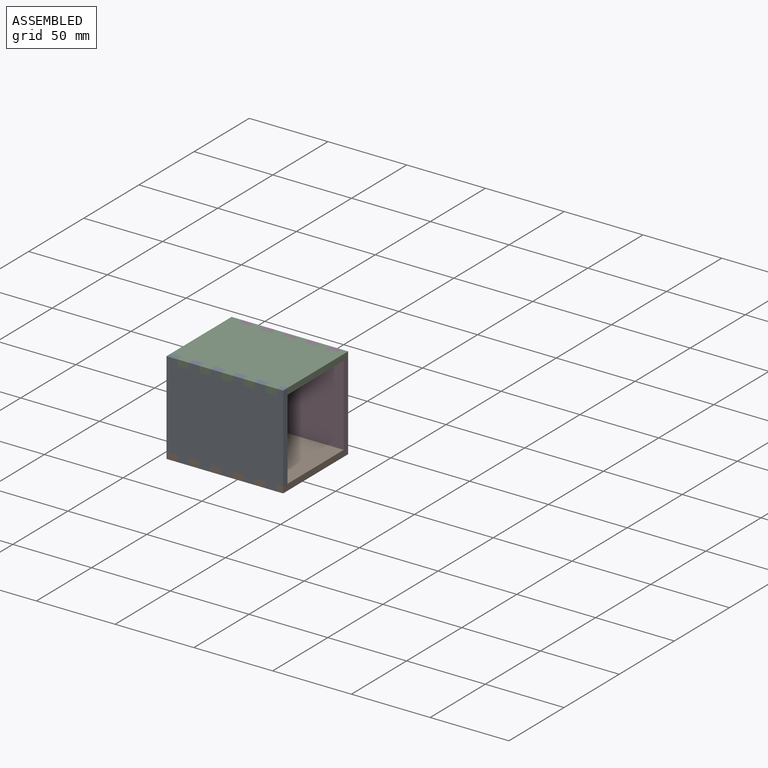
[diagram: assembled view]
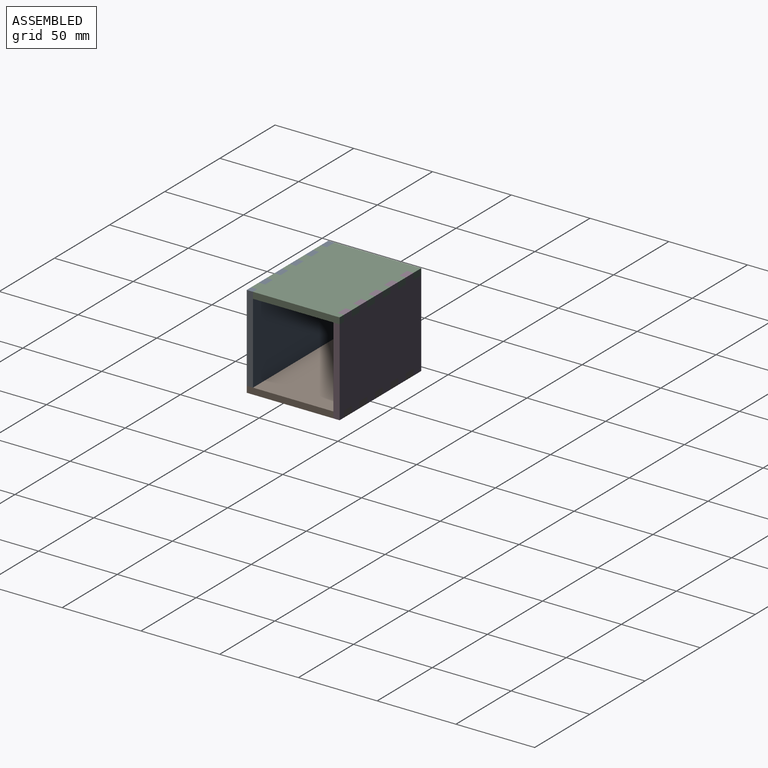
[diagram: assembled view, second angle]
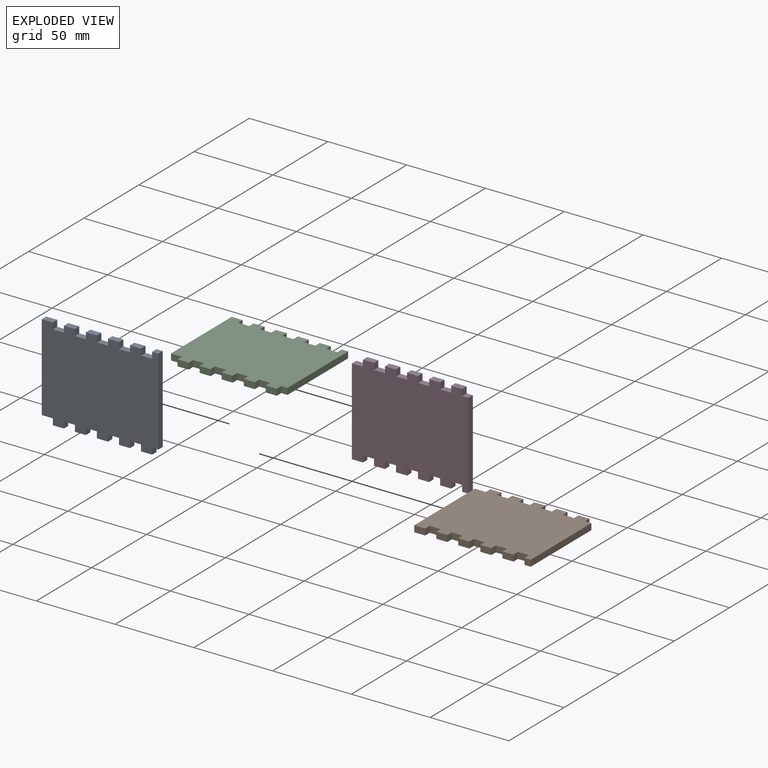
[diagram: exploded view]
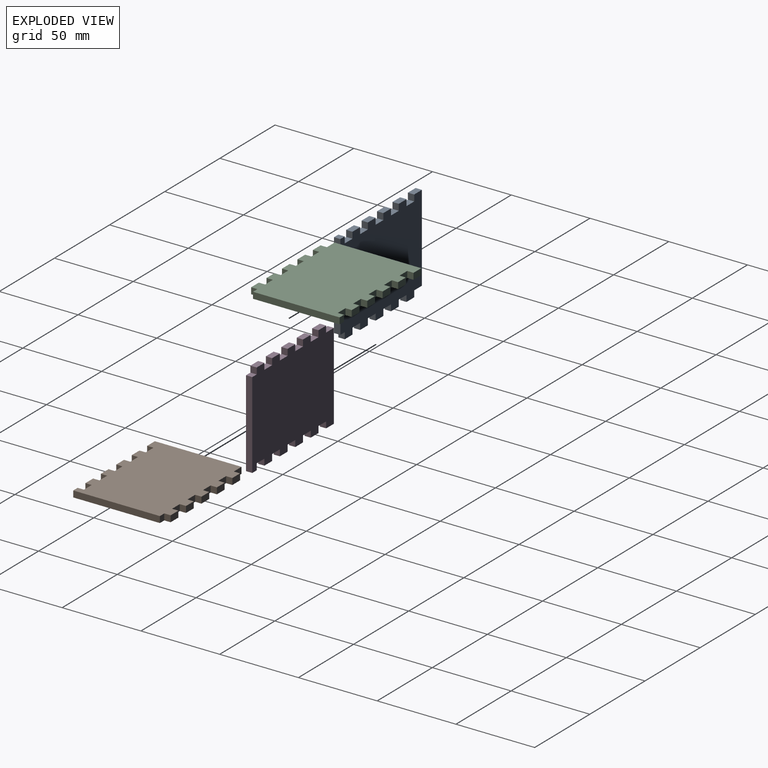
[diagram: exploded view, second angle]
ASSEMBLY  parts=4 mates=3
PART A: 46 faces, bbox 74x59x4 mm
  f0: plane 7x4mm, normal (0,-1,0), area 28mm2, adj f1,f43,f44,f45
  f1: plane 4x4mm, normal (-1,0,0), area 16mm2, adj f0,f2,f44,f45
  f2: plane 7x4mm, normal (0,-1,0), area 28mm2, adj f1,f3,f44,f45
  f3: plane 4x4mm, normal (1,0,0), area 16mm2, adj f2,f4,f44,f45
  f4: plane 7x4mm, normal (0,-1,0), area 28mm2, adj f3,f5,f44,f45
  f5: plane 4x4mm, normal (-1,0,0), area 16mm2, adj f4,f6,f44,f45
  f6: plane 7x4mm, normal (0,-1,0), area 28mm2, adj f5,f7,f44,f45
  f7: plane 4x4mm, normal (1,0,0), area 16mm2, adj f6,f8,f44,f45
  f8: plane 7x4mm, normal (0,-1,0), area 28mm2, adj f7,f9,f44,f45
  f9: plane 4x4mm, normal (-1,0,0), area 16mm2, adj f8,f10,f44,f45
  f10: plane 7x4mm, normal (0,-1,0), area 28mm2, adj f9,f11,f44,f45
  f11: plane 4x4mm, normal (1,0,0), area 16mm2, adj f10,f12,f44,f45
  f12: plane 7x4mm, normal (0,-1,0), area 28mm2, adj f11,f13,f44,f45
  f13: plane 4x4mm, normal (-1,0,0), area 16mm2, adj f12,f14,f44,f45
  f14: plane 7x4mm, normal (0,-1,0), area 28mm2, adj f13,f15,f44,f45
  f15: plane 4x4mm, normal (1,0,0), area 16mm2, adj f14,f16,f44,f45
  f16: plane 7x4mm, normal (0,-1,0), area 28mm2, adj f15,f17,f44,f45
  f17: plane 4x4mm, normal (-1,0,0), area 16mm2, adj f16,f18,f44,f45
  f18: plane 7x4mm, normal (0,-1,0), area 28mm2, adj f17,f19,f44,f45
  f19: plane 4x4mm, normal (1,0,0), area 16mm2, adj f18,f20,f44,f45
  f20: plane 4x4mm, normal (0,-1,0), area 16mm2, adj f19,f21,f44,f45
  f21: plane 55x4mm, normal (1,0,0), area 220mm2, adj f20,f22,f44,f45
  f22: plane 4x4mm, normal (0,1,0), area 16mm2, adj f21,f23,f44,f45
  f23: plane 4x4mm, normal (-1,0,0), area 16mm2, adj f22,f24,f44,f45
  f24: plane 7x4mm, normal (0,1,0), area 28mm2, adj f23,f25,f44,f45
  f25: plane 4x4mm, normal (1,0,0), area 16mm2, adj f24,f26,f44,f45
  f26: plane 7x4mm, normal (0,1,0), area 28mm2, adj f25,f27,f44,f45
  f27: plane 4x4mm, normal (-1,0,0), area 16mm2, adj f26,f28,f44,f45
  f28: plane 7x4mm, normal (0,1,0), area 28mm2, adj f27,f29,f44,f45
  f29: plane 4x4mm, normal (1,0,0), area 16mm2, adj f28,f30,f44,f45
  f30: plane 7x4mm, normal (0,1,0), area 28mm2, adj f29,f31,f44,f45
  f31: plane 4x4mm, normal (-1,0,0), area 16mm2, adj f30,f32,f44,f45
  f32: plane 7x4mm, normal (0,1,0), area 28mm2, adj f31,f33,f44,f45
  f33: plane 4x4mm, normal (1,0,0), area 16mm2, adj f32,f34,f44,f45
  f34: plane 7x4mm, normal (0,1,0), area 28mm2, adj f33,f35,f44,f45
  f35: plane 4x4mm, normal (-1,0,0), area 16mm2, adj f34,f36,f44,f45
  f36: plane 7x4mm, normal (0,1,0), area 28mm2, adj f35,f37,f44,f45
  f37: plane 4x4mm, normal (1,0,0), area 16mm2, adj f36,f38,f44,f45
  f38: plane 7x4mm, normal (0,1,0), area 28mm2, adj f37,f39,f44,f45
  f39: plane 4x4mm, normal (-1,0,0), area 16mm2, adj f38,f40,f44,f45
  f40: plane 7x4mm, normal (0,1,0), area 28mm2, adj f39,f41,f44,f45
  f41: plane 4x4mm, normal (1,0,0), area 16mm2, adj f40,f42,f44,f45
  f42: plane 7x4mm, normal (0,1,0), area 28mm2, adj f41,f43,f44,f45
  f43: plane 55x4mm, normal (-1,0,0), area 220mm2, adj f0,f42,f44,f45
  f44: plane 74x59mm, normal (0,0,1), area 4070mm2, adj f0,f1,f2,f3,f4,f5,f6,f7
  f45: plane 74x59mm, normal (0,0,-1), area 4070mm2, adj f0,f1,f2,f3,f4,f5,f6,f7
PART B: same geometry as A
PART C: same geometry as A
PART D: same geometry as A
PLACE A rot(axis=(1,0,0),90deg) t=(-5.72,-66.98,60.3)mm
PLACE B rot(axis=(1,0,0),180deg) t=(-5.72,-41.48,34.8)mm
PLACE C t=(-5.72,-41.48,85.8)mm
PLACE D rot(axis=(-1,0,0),90deg) t=(-5.72,-15.98,60.3)mm
MATE fastened C.f19 <-> A.f23  axis (1,0,0) through (27.28,-68.98,87.8)mm
MATE fastened D.f19 <-> C.f23  axis (1,0,0) through (27.28,-13.98,87.8)mm
MATE fastened B.f19 <-> D.f23  axis (1,0,0) through (27.28,-13.98,32.8)mm
